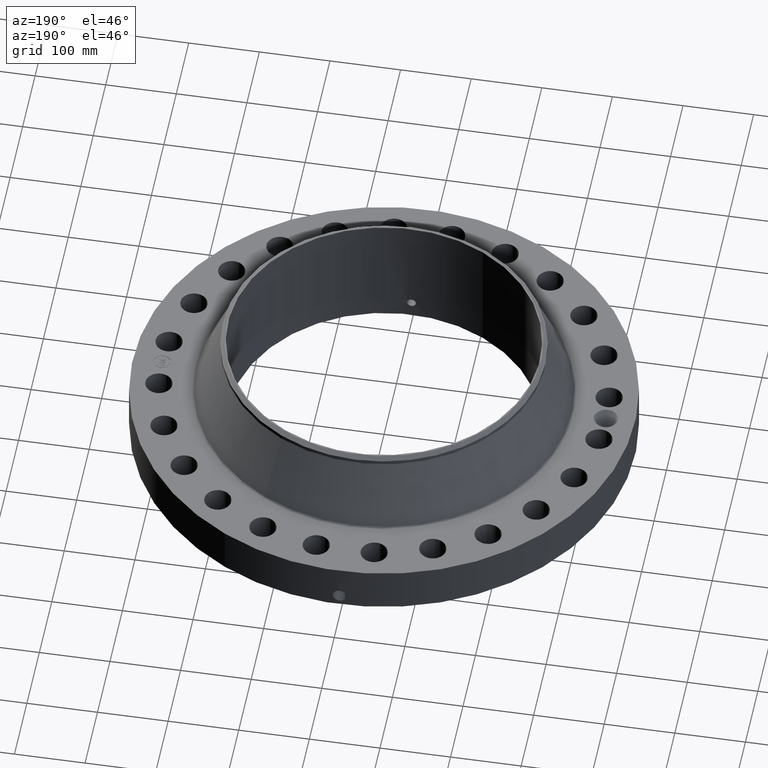
[diagram: clean part render]
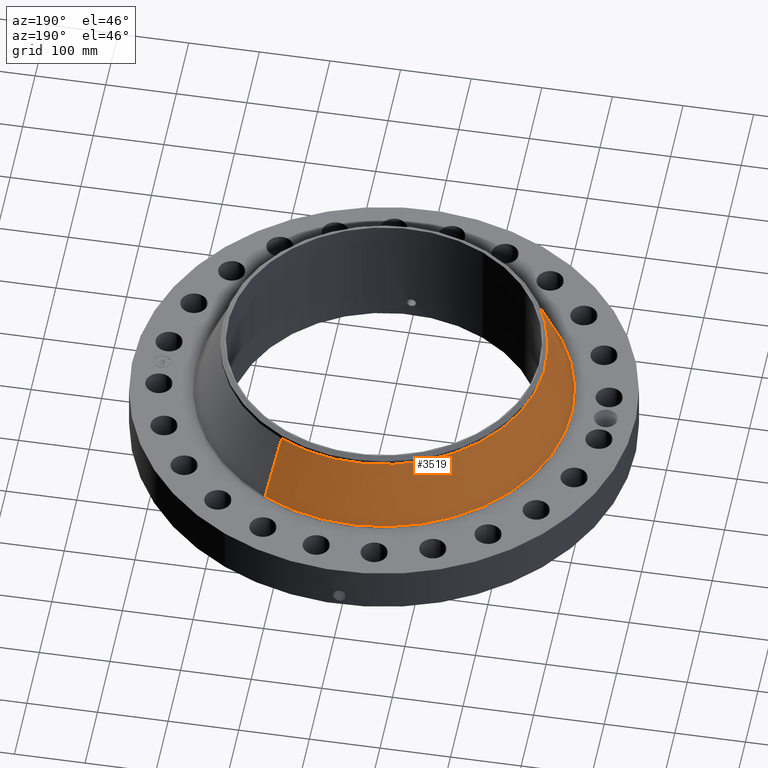
[diagram: same view with one face highlighted and labeled with its STEP entity id]
A machine part, auxiliary view. The second image highlights one B-rep face of the part: STEP entity #3519.
In plain terms, the highlighted conical surface has half-angle 23.409 deg.
Its self-contained STEP definition (entity closure, byte-faithful):
#2835=AXIS2_PLACEMENT_3D('Circle Axis2P3D',#2833,#2834,$) ;
#3480=AXIS2_PLACEMENT_3D('Cone Axis2P3D',#3477,#3478,#3479) ;
#3510=AXIS2_PLACEMENT_3D('Circle Axis2P3D',#3508,#3509,$) ;
#2811=CARTESIAN_POINT('Vertex',(5.01895670469,9.18713862375,2.94232484763)) ;
#2818=CARTESIAN_POINT('Vertex',(-5.01895670469,-9.18713862375,2.94232484763)) ;
#2833=CARTESIAN_POINT('Axis2P3D Location',(0.,0.,2.94232484763)) ;
#3477=CARTESIAN_POINT('Axis2P3D Location',(0.,0.,6.33479295521)) ;
#3482=CARTESIAN_POINT('Line Origine',(4.66689327607,8.5426908404,4.63855890142)) ;
#3486=CARTESIAN_POINT('Vertex',(4.31482984746,7.89824305704,6.33479295521)) ;
#3493=CARTESIAN_POINT('Vertex',(-4.31482984746,-7.89824305704,6.33479295521)) ;
#3496=CARTESIAN_POINT('Line Origine',(-4.66689327607,-8.5426908404,4.63855890142)) ;
#3508=CARTESIAN_POINT('Axis2P3D Location',(0.,0.,6.33479295521)) ;
#2834=DIRECTION('Axis2P3D Direction',(0.,0.,-0.0393700787402)) ;
#3478=DIRECTION('Axis2P3D Direction',(0.,0.,-0.0393700787402)) ;
#3479=DIRECTION('Axis2P3D XDirection',(-0.0188750212049,-0.0345504945626,0.)) ;
#3483=DIRECTION('Vector Direction',(0.00749891260171,0.0137266674436,-0.0361296002011)) ;
#3497=DIRECTION('Vector Direction',(-0.00749891260171,-0.0137266674436,-0.0361296002011)) ;
#3509=DIRECTION('Axis2P3D Direction',(0.,0.,-0.0393700787402)) ;
#3484=VECTOR('Line Direction',#3483,0.0393700787402) ;
#3498=VECTOR('Line Direction',#3497,0.0393700787402) ;
#3514=ORIENTED_EDGE('',*,*,#2837,.F.) ;
#3515=ORIENTED_EDGE('',*,*,#3500,.T.) ;
#3516=ORIENTED_EDGE('',*,*,#3512,.T.) ;
#3517=ORIENTED_EDGE('',*,*,#3488,.F.) ;
#3519=ADVANCED_FACE('PartBody',(#3518),#3481,.T.) ;
#2836=CIRCLE('generated circle',#2835,10.4686886712) ;
#3511=CIRCLE('generated circle',#3510,9.00000000004) ;
#3481=CONICAL_SURFACE('Cone',#3480,9.00000000004,0.40856509469) ;
#2837=EDGE_CURVE('',#2819,#2812,#2836,.T.) ;
#3488=EDGE_CURVE('',#2812,#3487,#3485,.F.) ;
#3500=EDGE_CURVE('',#2819,#3494,#3499,.F.) ;
#3512=EDGE_CURVE('',#3494,#3487,#3511,.T.) ;
#3513=EDGE_LOOP('',(#3514,#3515,#3516,#3517)) ;
#3518=FACE_OUTER_BOUND('',#3513,.T.) ;
#3485=LINE('Line',#3482,#3484) ;
#3499=LINE('Line',#3496,#3498) ;
#2812=VERTEX_POINT('',#2811) ;
#2819=VERTEX_POINT('',#2818) ;
#3487=VERTEX_POINT('',#3486) ;
#3494=VERTEX_POINT('',#3493) ;